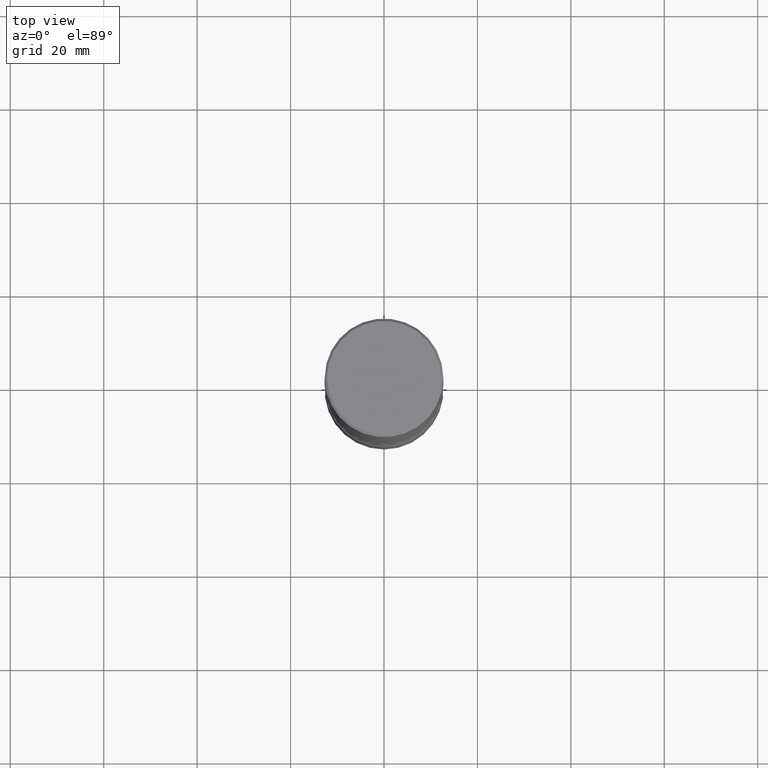
[diagram: clean part render]
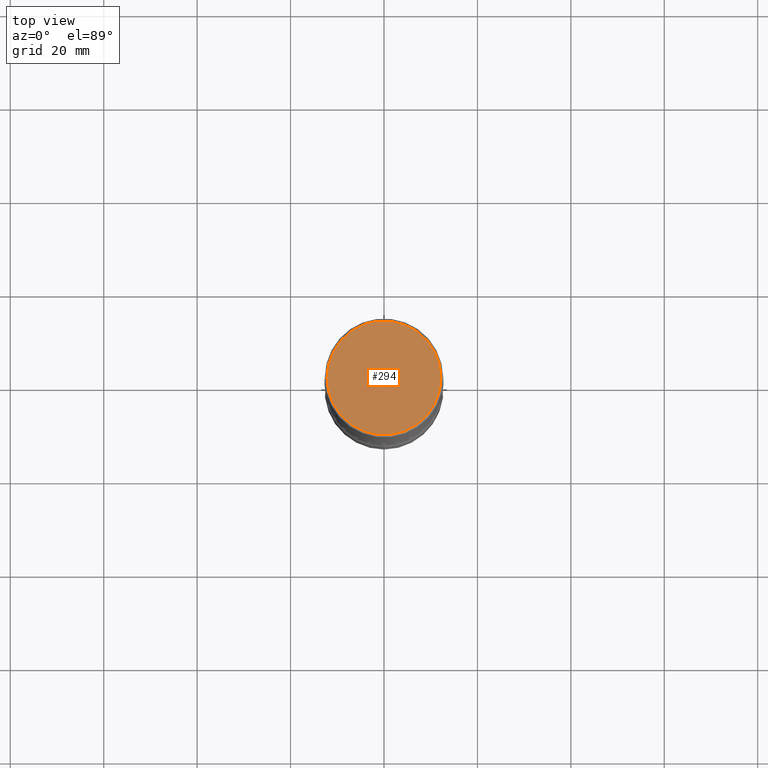
[diagram: same view with one face highlighted and labeled with its STEP entity id]
A machine part, top view. The second image highlights one B-rep face of the part: STEP entity #294.
In plain terms, the highlighted planar face has unit normal (0, -0, -1).
Its self-contained STEP definition (entity closure, byte-faithful):
#39 = AXIS2_PLACEMENT_3D ( 'NONE', #69, #442, #490 ) ;
#58 = EDGE_CURVE ( 'NONE', #364, #350, #257, .T. ) ;
#60 = CARTESIAN_POINT ( 'NONE',  ( -0.4799999999999995937, 3.386736898677836436E-15, 1.280553747027767124E-17 ) ) ;
#69 = CARTESIAN_POINT ( 'NONE',  ( -3.131554243005659264E-46, 4.471029511141341874E-32, 1.280553747030123384E-17 ) ) ;
#115 = EDGE_CURVE ( 'NONE', #350, #364, #128, .T. ) ;
#128 = CIRCLE ( 'NONE', #39, 0.4799999999999995937 ) ;
#134 = CARTESIAN_POINT ( 'NONE',  ( -3.131554243005659264E-46, 4.471029511141341874E-32, 1.280553747030123384E-17 ) ) ;
#174 = ORIENTED_EDGE ( 'NONE', *, *, #115, .T. ) ;
#175 = DIRECTION ( 'NONE',  ( -1.000000000000000000, 6.982962677686265922E-15, -4.876176775795935793E-29 ) ) ;
#177 = FACE_OUTER_BOUND ( 'NONE', #235, .T. ) ;
#188 = DIRECTION ( 'NONE',  ( -2.445468806185136597E-29, 3.491481338843145583E-15, 1.000000000000000000 ) ) ;
#235 = EDGE_LOOP ( 'NONE', ( #504, #174 ) ) ;
#246 = PLANE ( 'NONE',  #460 ) ;
#257 = CIRCLE ( 'NONE', #322, 0.4799999999999995937 ) ;
#294 = ADVANCED_FACE ( 'NONE', ( #177 ), #246, .F. ) ;
#322 = AXIS2_PLACEMENT_3D ( 'NONE', #134, #188, #340 ) ;
#340 = DIRECTION ( 'NONE',  ( 1.000000000000000000, -6.982962677686266711E-15, 4.876036955247133327E-29 ) ) ;
#341 = DIRECTION ( 'NONE',  ( 2.438088387897960049E-29, -3.491481338843145188E-15, -1.000000000000000000 ) ) ;
#350 = VERTEX_POINT ( 'NONE', #375 ) ;
#364 = VERTEX_POINT ( 'NONE', #60 ) ;
#375 = CARTESIAN_POINT ( 'NONE',  ( 0.4799999999999995937, -3.396558832296479338E-15, 1.280553747032483033E-17 ) ) ;
#407 = CARTESIAN_POINT ( 'NONE',  ( 3.351822085289404787E-15, 0.4799999999999995937, -1.669508273909557867E-15 ) ) ;
#442 = DIRECTION ( 'NONE',  ( -2.445468806185136597E-29, 3.491481338843145583E-15, 1.000000000000000000 ) ) ;
#460 = AXIS2_PLACEMENT_3D ( 'NONE', #407, #341, #175 ) ;
#490 = DIRECTION ( 'NONE',  ( 1.000000000000000000, -6.982962677686266711E-15, 4.876036955247133327E-29 ) ) ;
#504 = ORIENTED_EDGE ( 'NONE', *, *, #58, .T. ) ;